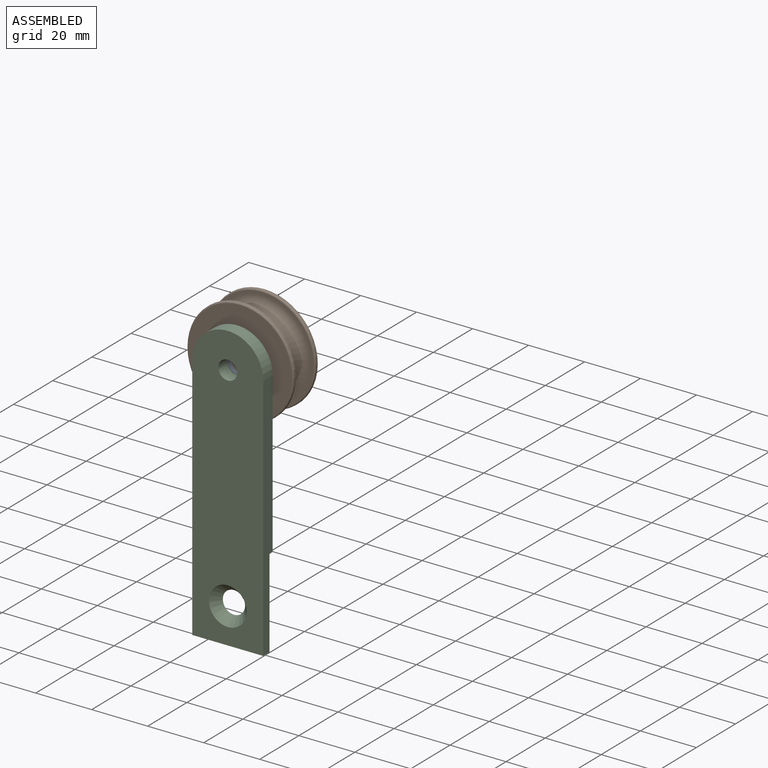
[diagram: assembled view]
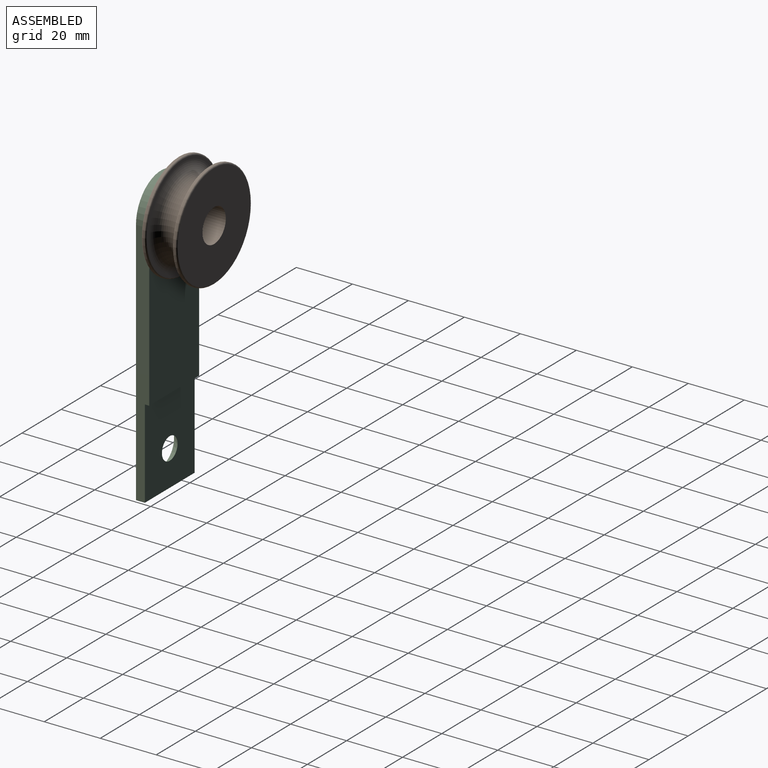
[diagram: assembled view, second angle]
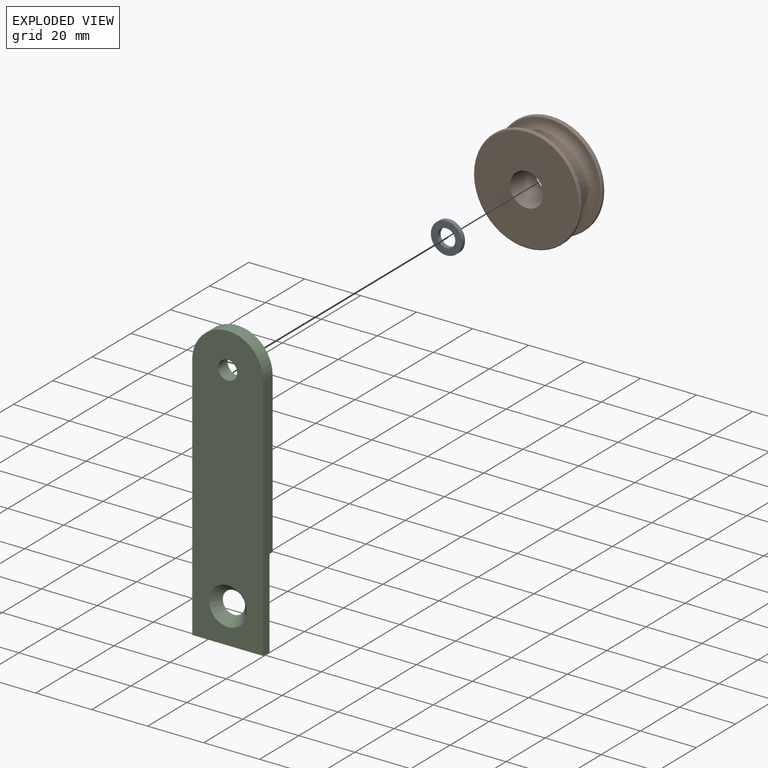
[diagram: exploded view]
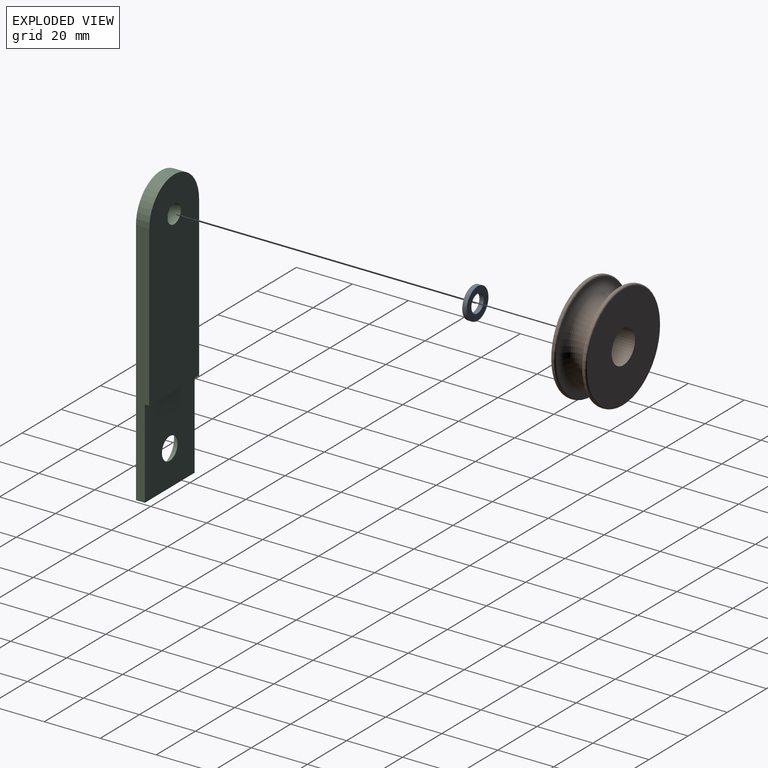
[diagram: exploded view, second angle]
ASSEMBLY  parts=3 mates=2
PART A: 4 faces, bbox 11.1x1.6x11.1 mm
  f0: cylinder r=3.17mm len=6.35mm, axis (0,1,0), area 31.7mm2, adj f2,f3
  f1: cylinder r=5.56mm len=11.11mm, axis (0,1,0), area 55.4mm2, adj f2,f3
  f2: plane 11.11x11.11mm, normal (0,-1,0), area 65.3mm2, adj f0,f1
  f3: plane 11.11x11.11mm, normal (0,1,0), area 65.3mm2, adj f0,f1
PART B: 12 faces, bbox 45.1x12.7x45.1 mm
  f0: plane 37.08x37.08mm, normal (0,1,0), area 968.8mm2, adj f7,f8
  f1: cylinder r=19.05mm len=38.1mm, axis (0,1,0), area 68.4mm2, adj f8,f9
  f2: plane 37.08x37.08mm, normal (0,-1,0), area 122.1mm2, adj f3,f9
  f3: torus R=17.46mm, axis (0,1,0), area 1356.6mm2, adj f2,f4
  f4: plane 37.08x37.08mm, normal (0,1,0), area 122.1mm2, adj f3,f10
  f5: cylinder r=19.05mm len=38.1mm, axis (0,1,0), area 68.4mm2, adj f10,f11
  f6: plane 37.08x37.08mm, normal (0,-1,0), area 968.8mm2, adj f7,f11
  f7: cylinder r=5.95mm len=12.7mm, axis (0,-1,0), area 475mm2, adj f0,f6
  f8: torus R=18.54mm, axis (0,1,0), area 94.6mm2, adj f0,f1
  f9: torus R=18.54mm, axis (0,-1,0), area 94.6mm2, adj f1,f2
  f10: torus R=18.54mm, axis (0,-1,0), area 94.6mm2, adj f4,f5
  f11: torus R=18.54mm, axis (0,1,0), area 94.6mm2, adj f5,f6
PART C: 10 faces, bbox 25.4x4.8x101.6 mm
  f0: cone r=3.38mm half-angle=41deg, axis (0,-1,0), area 141.8mm2, adj f4,f9
  f1: plane 25.4x3.18mm, normal (0,0,-1), area 80.6mm2, adj f2,f3,f4,f9
  f2: plane 88.9x4.76mm, normal (1,0,0), area 373mm2, adj f1,f4,f5,f7,f8,f9
  f3: plane 88.9x4.76mm, normal (-1,0,0), area 373mm2, adj f1,f4,f5,f7,f8,f9
  f4: plane 101.6x25.4mm, normal (0,-1,0), area 2332.7mm2, adj f0,f1,f2,f3,f6,f7
  f5: plane 69.85x25.4mm, normal (0,1,0), area 1669.1mm2, adj f2,f3,f6,f7,f8
  f6: cylinder r=3.38mm len=6.76mm, axis (0,-1,0), area 101.1mm2, adj f4,f5
  f7: cylinder r=12.7mm len=25.4mm, axis (0,-1,0), area 190mm2, adj f2,f3,f4,f5
  f8: plane 25.4x1.59mm, normal (0,0,-1), area 40.3mm2, adj f2,f3,f5,f9
  f9: plane 31.75x25.4mm, normal (0,1,0), area 756.6mm2, adj f0,f1,f2,f3,f8
PLACE A t=(69.29,41.69,19.99)mm
PLACE B t=(69.29,48.84,19.99)mm
PLACE C t=(69.29,38.52,-18.11)mm
MATE fastened B.f1 <-> A.f1  axis (0,-1,0) through (69.29,42.49,19.99)mm
MATE fastened A.f1 <-> C.f6  axis (0,-1,0) through (69.29,40.9,19.99)mm
